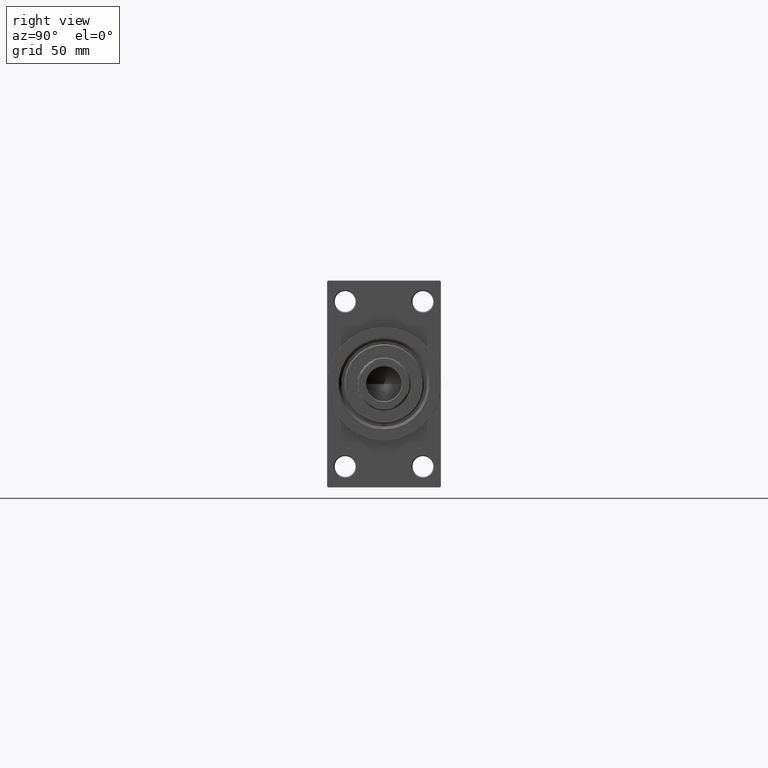
[diagram: clean part render]
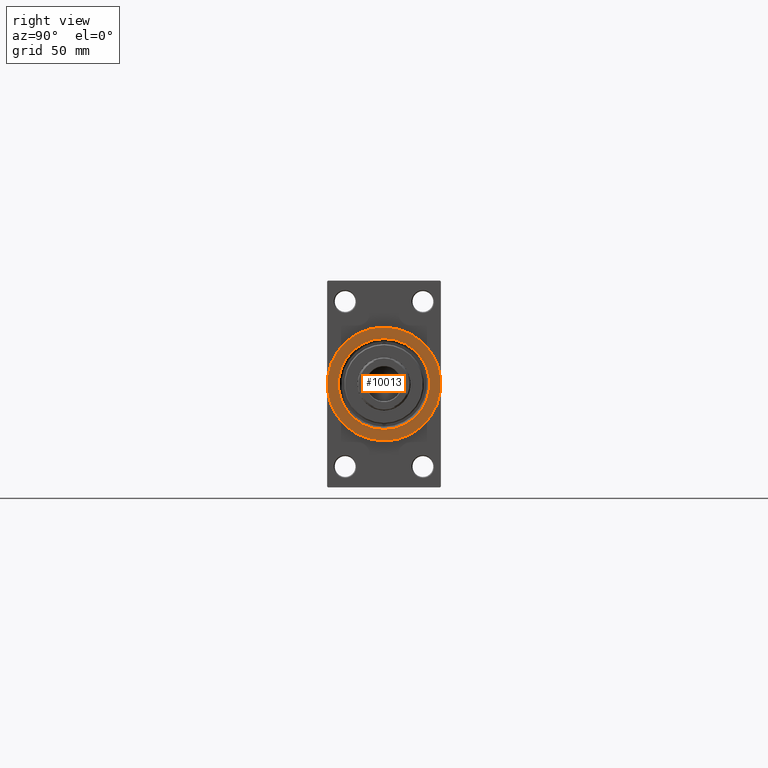
[diagram: same view with one face highlighted and labeled with its STEP entity id]
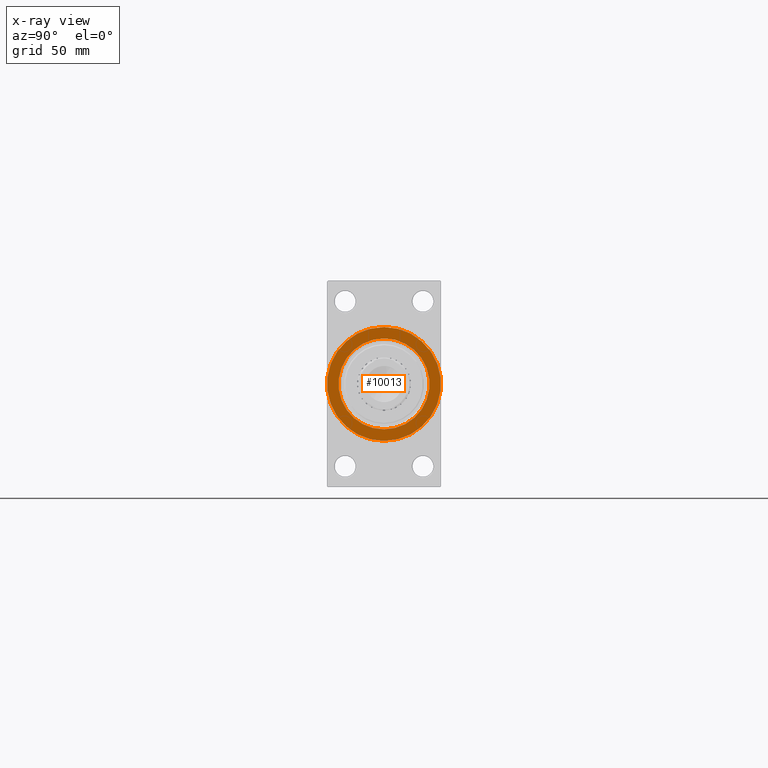
[diagram: x-ray of the same camera — body ghosted, the highlighted face saturated]
A machine part, right view. The second image highlights one B-rep face of the part: STEP entity #10013.
The next image is the same camera in x-ray: the body ghosted, the highlighted face saturated — about 0% of this face is hidden behind the body in this view.
In plain terms, the highlighted planar face has unit normal (1, 0, 0).
Its self-contained STEP definition (entity closure, byte-faithful):
#515 = EDGE_LOOP ( 'NONE', ( #20587, #36916 ) ) ;
#2426 = DIRECTION ( 'NONE',  ( 0.000000000000000000, 0.000000000000000000, -1.000000000000000000 ) ) ;
#3746 = AXIS2_PLACEMENT_3D ( 'NONE', #6452, #21095, #36727 ) ;
#3999 = ORIENTED_EDGE ( 'NONE', *, *, #38060, .T. ) ;
#5049 = DIRECTION ( 'NONE',  ( 1.000000000000000000, 0.000000000000000000, 0.000000000000000000 ) ) ;
#5539 = FACE_OUTER_BOUND ( 'NONE', #9787, .T. ) ;
#6452 = CARTESIAN_POINT ( 'NONE',  ( 327.9999999999999432, 0.000000000000000000, 0.000000000000000000 ) ) ;
#8428 = DIRECTION ( 'NONE',  ( 0.000000000000000000, 0.000000000000000000, -1.000000000000000000 ) ) ;
#8673 = VERTEX_POINT ( 'NONE', #10664 ) ;
#8873 = CARTESIAN_POINT ( 'NONE',  ( 327.9999999999999432, 0.000000000000000000, 0.000000000000000000 ) ) ;
#9787 = EDGE_LOOP ( 'NONE', ( #3999, #42260 ) ) ;
#10013 = ADVANCED_FACE ( 'NONE', ( #38464, #5539 ), #41578, .T. ) ;
#10178 = EDGE_CURVE ( 'NONE', #32246, #8673, #20308, .T. ) ;
#10664 = CARTESIAN_POINT ( 'NONE',  ( 327.9999999999999432, 0.000000000000000000, 30.00000000000000000 ) ) ;
#13423 = AXIS2_PLACEMENT_3D ( 'NONE', #8873, #5049, #2426 ) ;
#14200 = VERTEX_POINT ( 'NONE', #37331 ) ;
#14394 = DIRECTION ( 'NONE',  ( 0.000000000000000000, 0.000000000000000000, -1.000000000000000000 ) ) ;
#14399 = CARTESIAN_POINT ( 'NONE',  ( 327.9999999999999432, 3.673940397442059178E-15, -30.00000000000000000 ) ) ;
#17322 = CARTESIAN_POINT ( 'NONE',  ( 327.9999999999999432, 0.000000000000000000, 0.000000000000000000 ) ) ;
#20308 = CIRCLE ( 'NONE', #35686, 30.00000000000000000 ) ;
#20454 = VERTEX_POINT ( 'NONE', #26157 ) ;
#20587 = ORIENTED_EDGE ( 'NONE', *, *, #24154, .T. ) ;
#21095 = DIRECTION ( 'NONE',  ( -1.000000000000000000, -0.000000000000000000, -0.000000000000000000 ) ) ;
#21445 = AXIS2_PLACEMENT_3D ( 'NONE', #17322, #46195, #35370 ) ;
#23098 = DIRECTION ( 'NONE',  ( 1.000000000000000000, 0.000000000000000000, 0.000000000000000000 ) ) ;
#23596 = EDGE_CURVE ( 'NONE', #20454, #14200, #32920, .T. ) ;
#24154 = EDGE_CURVE ( 'NONE', #14200, #20454, #39866, .T. ) ;
#25077 = AXIS2_PLACEMENT_3D ( 'NONE', #26244, #23098, #8428 ) ;
#25469 = CARTESIAN_POINT ( 'NONE',  ( 327.9999999999999432, 0.000000000000000000, 0.000000000000000000 ) ) ;
#26157 = CARTESIAN_POINT ( 'NONE',  ( 327.9999999999999432, 2.939152317953664461E-15, 24.00000000000013500 ) ) ;
#26244 = CARTESIAN_POINT ( 'NONE',  ( 327.9999999999999432, 0.000000000000000000, 0.000000000000000000 ) ) ;
#32246 = VERTEX_POINT ( 'NONE', #14399 ) ;
#32920 = CIRCLE ( 'NONE', #3746, 24.00000000000013500 ) ;
#35370 = DIRECTION ( 'NONE',  ( 0.000000000000000000, 0.000000000000000000, -1.000000000000000000 ) ) ;
#35686 = AXIS2_PLACEMENT_3D ( 'NONE', #25469, #47337, #14394 ) ;
#36727 = DIRECTION ( 'NONE',  ( 0.000000000000000000, 0.000000000000000000, -1.000000000000000000 ) ) ;
#36916 = ORIENTED_EDGE ( 'NONE', *, *, #23596, .T. ) ;
#37331 = CARTESIAN_POINT ( 'NONE',  ( 327.9999999999999432, 0.000000000000000000, -24.00000000000013500 ) ) ;
#38060 = EDGE_CURVE ( 'NONE', #8673, #32246, #45803, .T. ) ;
#38464 = FACE_BOUND ( 'NONE', #515, .T. ) ;
#39866 = CIRCLE ( 'NONE', #21445, 24.00000000000013500 ) ;
#41578 = PLANE ( 'NONE',  #13423 ) ;
#42260 = ORIENTED_EDGE ( 'NONE', *, *, #10178, .T. ) ;
#45803 = CIRCLE ( 'NONE', #25077, 30.00000000000000000 ) ;
#46195 = DIRECTION ( 'NONE',  ( -1.000000000000000000, -0.000000000000000000, -0.000000000000000000 ) ) ;
#47337 = DIRECTION ( 'NONE',  ( 1.000000000000000000, 0.000000000000000000, 0.000000000000000000 ) ) ;